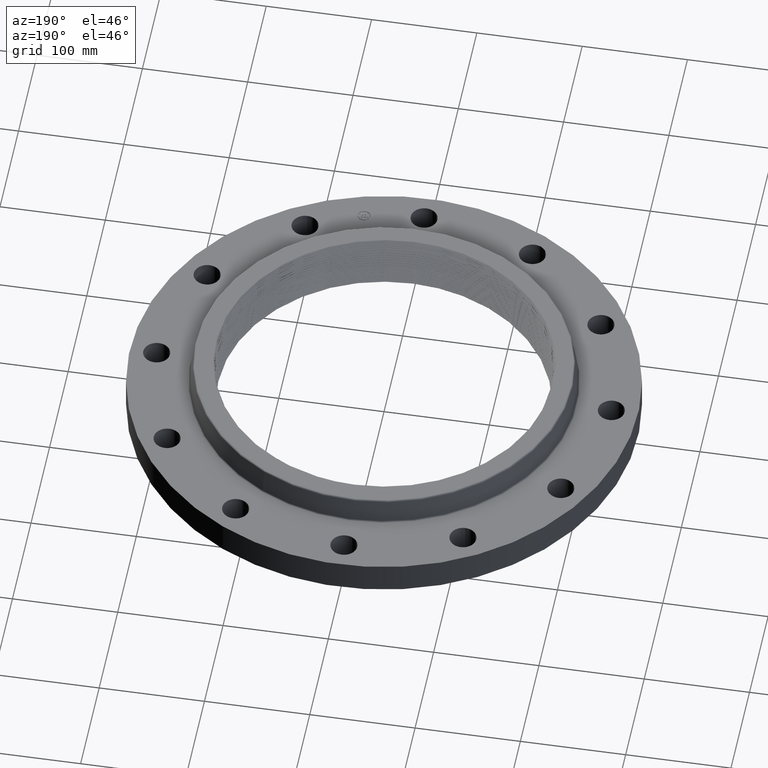
[diagram: clean part render]
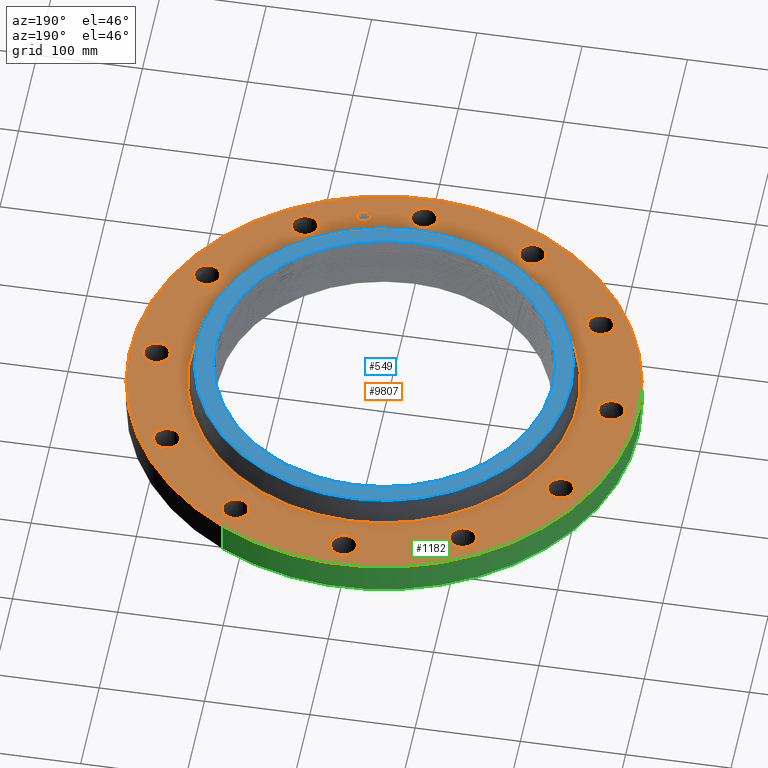
[diagram: same view with three faces highlighted in distinct colors, each labeled with its STEP entity id]
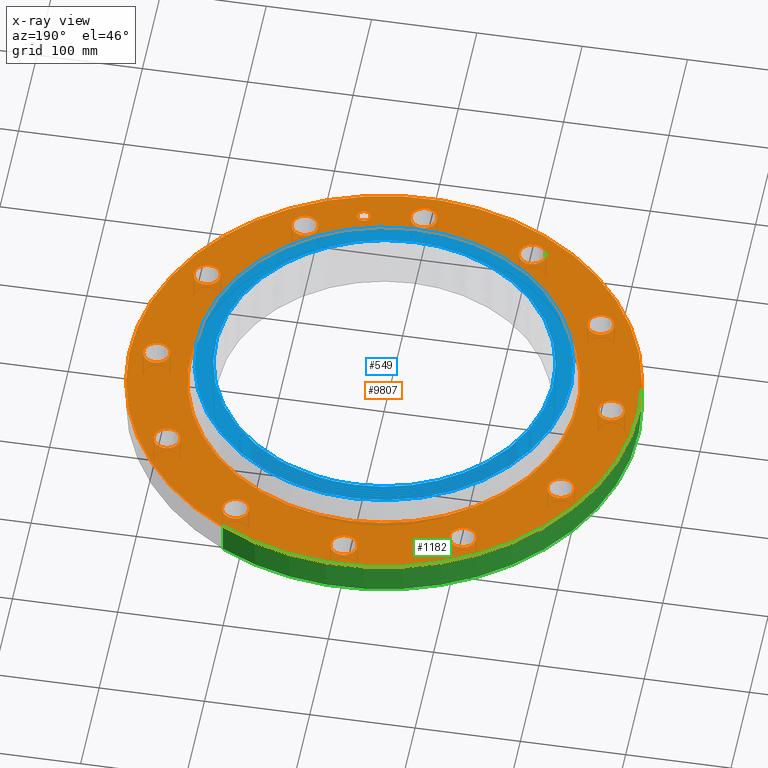
[diagram: x-ray of the same camera — body ghosted, the three highlighted faces saturated]
A machine part, auxiliary view with three faces highlighted in distinct colors.
The next image is the same camera in x-ray (body ghosted, the three faces saturated) — at least one of them is partly hidden behind the body in this view.
Their STEP definitions:

[orange] entity #9807 — the highlighted planar face has unit normal (0, 0, -1).
#571=AXIS2_PLACEMENT_3D('Circle Axis2P3D',#569,#570,$) ;
#583=AXIS2_PLACEMENT_3D('Circle Axis2P3D',#581,#582,$) ;
#614=AXIS2_PLACEMENT_3D('Circle Axis2P3D',#612,#613,$) ;
#626=AXIS2_PLACEMENT_3D('Circle Axis2P3D',#624,#625,$) ;
#657=AXIS2_PLACEMENT_3D('Circle Axis2P3D',#655,#656,$) ;
#669=AXIS2_PLACEMENT_3D('Circle Axis2P3D',#667,#668,$) ;
#700=AXIS2_PLACEMENT_3D('Circle Axis2P3D',#698,#699,$) ;
#712=AXIS2_PLACEMENT_3D('Circle Axis2P3D',#710,#711,$) ;
#743=AXIS2_PLACEMENT_3D('Circle Axis2P3D',#741,#742,$) ;
#755=AXIS2_PLACEMENT_3D('Circle Axis2P3D',#753,#754,$) ;
#786=AXIS2_PLACEMENT_3D('Circle Axis2P3D',#784,#785,$) ;
#798=AXIS2_PLACEMENT_3D('Circle Axis2P3D',#796,#797,$) ;
#829=AXIS2_PLACEMENT_3D('Circle Axis2P3D',#827,#828,$) ;
#841=AXIS2_PLACEMENT_3D('Circle Axis2P3D',#839,#840,$) ;
#872=AXIS2_PLACEMENT_3D('Circle Axis2P3D',#870,#871,$) ;
#884=AXIS2_PLACEMENT_3D('Circle Axis2P3D',#882,#883,$) ;
#915=AXIS2_PLACEMENT_3D('Circle Axis2P3D',#913,#914,$) ;
#927=AXIS2_PLACEMENT_3D('Circle Axis2P3D',#925,#926,$) ;
#958=AXIS2_PLACEMENT_3D('Circle Axis2P3D',#956,#957,$) ;
#970=AXIS2_PLACEMENT_3D('Circle Axis2P3D',#968,#969,$) ;
#1001=AXIS2_PLACEMENT_3D('Circle Axis2P3D',#999,#1000,$) ;
#1013=AXIS2_PLACEMENT_3D('Circle Axis2P3D',#1011,#1012,$) ;
#1116=AXIS2_PLACEMENT_3D('Circle Axis2P3D',#1114,#1115,$) ;
#1142=AXIS2_PLACEMENT_3D('Circle Axis2P3D',#1140,#1141,$) ;
#1166=AXIS2_PLACEMENT_3D('Circle Axis2P3D',#1164,#1165,$) ;
#1185=AXIS2_PLACEMENT_3D('Circle Axis2P3D',#1183,#1184,$) ;
#1216=AXIS2_PLACEMENT_3D('Circle Axis2P3D',#1214,#1215,$) ;
#1228=AXIS2_PLACEMENT_3D('Circle Axis2P3D',#1226,#1227,$) ;
#9731=AXIS2_PLACEMENT_3D('Plane Axis2P3D',#9728,#9729,#9730) ;
#9791=AXIS2_PLACEMENT_3D('Circle Axis2P3D',#9789,#9790,$) ;
#9800=AXIS2_PLACEMENT_3D('Circle Axis2P3D',#9798,#9799,$) ;
#559=CARTESIAN_POINT('Vertex',(7.6213639438,-4.67699298832,1.19)) ;
#566=CARTESIAN_POINT('Vertex',(7.10106792059,-3.82300701172,1.19)) ;
#569=CARTESIAN_POINT('Axis2P3D Location',(7.3612159322,-4.25000000002,1.19)) ;
#581=CARTESIAN_POINT('Axis2P3D Location',(7.3612159322,-4.25000000002,1.19)) ;
#602=CARTESIAN_POINT('Vertex',(-8.93879128098,0.239712769303,1.19)) ;
#609=CARTESIAN_POINT('Vertex',(-8.06120871909,-0.239712769303,1.19)) ;
#612=CARTESIAN_POINT('Axis2P3D Location',(-8.50000000003,-1.04094977928E-015,1.19)) ;
#624=CARTESIAN_POINT('Axis2P3D Location',(-8.50000000003,-1.04094977928E-015,1.19)) ;
#645=CARTESIAN_POINT('Vertex',(7.86107671311,4.26179829266,1.19)) ;
#652=CARTESIAN_POINT('Vertex',(6.86135515129,4.23820170737,1.19)) ;
#655=CARTESIAN_POINT('Axis2P3D Location',(7.3612159322,4.25000000002,1.19)) ;
#667=CARTESIAN_POINT('Axis2P3D Location',(7.3612159322,4.25000000002,1.19)) ;
#688=CARTESIAN_POINT('Vertex',(-7.86107671311,-4.26179829266,1.19)) ;
#695=CARTESIAN_POINT('Vertex',(-6.86135515129,-4.23820170737,1.19)) ;
#698=CARTESIAN_POINT('Axis2P3D Location',(-7.3612159322,-4.25000000002,1.19)) ;
#710=CARTESIAN_POINT('Axis2P3D Location',(-7.3612159322,-4.25000000002,1.19)) ;
#731=CARTESIAN_POINT('Vertex',(4.67699298832,7.6213639438,1.19)) ;
#738=CARTESIAN_POINT('Vertex',(3.82300701172,7.10106792059,1.19)) ;
#741=CARTESIAN_POINT('Axis2P3D Location',(4.25000000002,7.3612159322,1.19)) ;
#753=CARTESIAN_POINT('Axis2P3D Location',(4.25000000002,7.3612159322,1.19)) ;
#774=CARTESIAN_POINT('Vertex',(-4.67699298832,-7.6213639438,1.19)) ;
#781=CARTESIAN_POINT('Vertex',(-3.82300701172,-7.10106792059,1.19)) ;
#784=CARTESIAN_POINT('Axis2P3D Location',(-4.25000000002,-7.3612159322,1.19)) ;
#796=CARTESIAN_POINT('Axis2P3D Location',(-4.25000000002,-7.3612159322,1.19)) ;
#817=CARTESIAN_POINT('Vertex',(0.239712769303,8.93879128098,1.19)) ;
#824=CARTESIAN_POINT('Vertex',(-0.239712769303,8.06120871909,1.19)) ;
#827=CARTESIAN_POINT('Axis2P3D Location',(-4.42459730714E-016,8.50000000003,1.19)) ;
#839=CARTESIAN_POINT('Axis2P3D Location',(-4.42459730714E-016,8.50000000003,1.19)) ;
#860=CARTESIAN_POINT('Vertex',(-0.239712769303,-8.93879128098,1.19)) ;
#867=CARTESIAN_POINT('Vertex',(0.239712769303,-8.06120871909,1.19)) ;
#870=CARTESIAN_POINT('Axis2P3D Location',(-5.98490048565E-016,-8.50000000003,1.19)) ;
#882=CARTESIAN_POINT('Axis2P3D Location',(-5.98490048565E-016,-8.50000000003,1.19)) ;
#903=CARTESIAN_POINT('Vertex',(-4.26179829266,7.86107671311,1.19)) ;
#910=CARTESIAN_POINT('Vertex',(-4.23820170737,6.86135515129,1.19)) ;
#913=CARTESIAN_POINT('Axis2P3D Location',(-4.25000000002,7.3612159322,1.19)) ;
#925=CARTESIAN_POINT('Axis2P3D Location',(-4.25000000002,7.3612159322,1.19)) ;
#946=CARTESIAN_POINT('Vertex',(4.26179829266,-7.86107671311,1.19)) ;
#953=CARTESIAN_POINT('Vertex',(4.23820170737,-6.86135515129,1.19)) ;
#956=CARTESIAN_POINT('Axis2P3D Location',(4.25000000002,-7.3612159322,1.19)) ;
#968=CARTESIAN_POINT('Axis2P3D Location',(4.25000000002,-7.3612159322,1.19)) ;
#989=CARTESIAN_POINT('Vertex',(-7.6213639438,4.67699298832,1.19)) ;
#996=CARTESIAN_POINT('Vertex',(-7.10106792059,3.82300701172,1.19)) ;
#999=CARTESIAN_POINT('Axis2P3D Location',(-7.3612159322,4.25000000002,1.19)) ;
#1011=CARTESIAN_POINT('Axis2P3D Location',(-7.3612159322,4.25000000002,1.19)) ;
#1114=CARTESIAN_POINT('Axis2P3D Location',(0.,0.,1.19)) ;
#1118=CARTESIAN_POINT('Vertex',(-3.47120677014,-6.35400137226,1.19)) ;
#1120=CARTESIAN_POINT('Vertex',(3.47120677014,6.35400137226,1.19)) ;
#1140=CARTESIAN_POINT('Axis2P3D Location',(0.,0.,1.19)) ;
#1161=CARTESIAN_POINT('Vertex',(-4.55454261676,-8.33703433799,1.19)) ;
#1164=CARTESIAN_POINT('Axis2P3D Location',(0.,0.,1.19)) ;
#1168=CARTESIAN_POINT('Vertex',(4.55454261676,8.33703433799,1.19)) ;
#1183=CARTESIAN_POINT('Axis2P3D Location',(0.,0.,1.19)) ;
#1204=CARTESIAN_POINT('Vertex',(8.93879128098,-0.239712769303,1.19)) ;
#1211=CARTESIAN_POINT('Vertex',(8.06120871909,0.239712769303,1.19)) ;
#1214=CARTESIAN_POINT('Axis2P3D Location',(8.50000000003,0.,1.19)) ;
#1226=CARTESIAN_POINT('Axis2P3D Location',(8.50000000003,0.,1.19)) ;
#9728=CARTESIAN_POINT('Axis2P3D Location',(0.,9.50000000004,1.19)) ;
#9789=CARTESIAN_POINT('Axis2P3D Location',(2.19996188338,-8.21036952349,1.19)) ;
#9793=CARTESIAN_POINT('Vertex',(2.43902852539,-8.14631180983,1.19)) ;
#9795=CARTESIAN_POINT('Vertex',(1.96089524137,-8.27442723715,1.19)) ;
#9798=CARTESIAN_POINT('Axis2P3D Location',(2.19996188338,-8.21036952349,1.19)) ;
#570=DIRECTION('Axis2P3D Direction',(0.,-0.,-0.0393700787402)) ;
#582=DIRECTION('Axis2P3D Direction',(0.,-0.,-0.0393700787402)) ;
#613=DIRECTION('Axis2P3D Direction',(-0.,0.,-0.0393700787402)) ;
#625=DIRECTION('Axis2P3D Direction',(-0.,0.,-0.0393700787402)) ;
#656=DIRECTION('Axis2P3D Direction',(0.,0.,-0.0393700787402)) ;
#668=DIRECTION('Axis2P3D Direction',(0.,0.,-0.0393700787402)) ;
#699=DIRECTION('Axis2P3D Direction',(-0.,0.,-0.0393700787402)) ;
#711=DIRECTION('Axis2P3D Direction',(-0.,0.,-0.0393700787402)) ;
#742=DIRECTION('Axis2P3D Direction',(0.,0.,-0.0393700787402)) ;
#754=DIRECTION('Axis2P3D Direction',(0.,0.,-0.0393700787402)) ;
#785=DIRECTION('Axis2P3D Direction',(-0.,0.,-0.0393700787402)) ;
#797=DIRECTION('Axis2P3D Direction',(-0.,0.,-0.0393700787402)) ;
#828=DIRECTION('Axis2P3D Direction',(0.,0.,-0.0393700787402)) ;
#840=DIRECTION('Axis2P3D Direction',(0.,0.,-0.0393700787402)) ;
#871=DIRECTION('Axis2P3D Direction',(0.,-0.,-0.0393700787402)) ;
#883=DIRECTION('Axis2P3D Direction',(0.,-0.,-0.0393700787402)) ;
#914=DIRECTION('Axis2P3D Direction',(0.,0.,-0.0393700787402)) ;
#926=DIRECTION('Axis2P3D Direction',(0.,0.,-0.0393700787402)) ;
#957=DIRECTION('Axis2P3D Direction',(0.,-0.,-0.0393700787402)) ;
#969=DIRECTION('Axis2P3D Direction',(0.,-0.,-0.0393700787402)) ;
#1000=DIRECTION('Axis2P3D Direction',(0.,0.,-0.0393700787402)) ;
#1012=DIRECTION('Axis2P3D Direction',(0.,0.,-0.0393700787402)) ;
#1115=DIRECTION('Axis2P3D Direction',(0.,0.,-0.0393700787402)) ;
#1141=DIRECTION('Axis2P3D Direction',(0.,0.,-0.0393700787402)) ;
#1165=DIRECTION('Axis2P3D Direction',(0.,0.,-0.0393700787402)) ;
#1184=DIRECTION('Axis2P3D Direction',(0.,0.,-0.0393700787402)) ;
#1215=DIRECTION('Axis2P3D Direction',(0.,-0.,-0.0393700787402)) ;
#1227=DIRECTION('Axis2P3D Direction',(0.,-0.,-0.0393700787402)) ;
#9729=DIRECTION('Axis2P3D Direction',(0.,0.,-0.0393700787402)) ;
#9730=DIRECTION('Axis2P3D XDirection',(0.0393700787402,0.,0.)) ;
#9790=DIRECTION('Axis2P3D Direction',(0.,0.,-0.0393700787402)) ;
#9799=DIRECTION('Axis2P3D Direction',(0.,0.,-0.0393700787402)) ;
#9734=ORIENTED_EDGE('',*,*,#1187,.F.) ;
#9735=ORIENTED_EDGE('',*,*,#1170,.F.) ;
#9738=ORIENTED_EDGE('',*,*,#1230,.T.) ;
#9739=ORIENTED_EDGE('',*,*,#1218,.T.) ;
#9742=ORIENTED_EDGE('',*,*,#1122,.T.) ;
#9743=ORIENTED_EDGE('',*,*,#1144,.T.) ;
#9746=ORIENTED_EDGE('',*,*,#573,.T.) ;
#9747=ORIENTED_EDGE('',*,*,#585,.T.) ;
#9750=ORIENTED_EDGE('',*,*,#960,.T.) ;
#9751=ORIENTED_EDGE('',*,*,#972,.T.) ;
#9754=ORIENTED_EDGE('',*,*,#874,.T.) ;
#9755=ORIENTED_EDGE('',*,*,#886,.T.) ;
#9758=ORIENTED_EDGE('',*,*,#788,.T.) ;
#9759=ORIENTED_EDGE('',*,*,#800,.T.) ;
#9762=ORIENTED_EDGE('',*,*,#702,.T.) ;
#9763=ORIENTED_EDGE('',*,*,#714,.T.) ;
#9766=ORIENTED_EDGE('',*,*,#616,.T.) ;
#9767=ORIENTED_EDGE('',*,*,#628,.T.) ;
#9770=ORIENTED_EDGE('',*,*,#1003,.T.) ;
#9771=ORIENTED_EDGE('',*,*,#1015,.T.) ;
#9774=ORIENTED_EDGE('',*,*,#917,.T.) ;
#9775=ORIENTED_EDGE('',*,*,#929,.T.) ;
#9778=ORIENTED_EDGE('',*,*,#831,.T.) ;
#9779=ORIENTED_EDGE('',*,*,#843,.T.) ;
#9782=ORIENTED_EDGE('',*,*,#745,.T.) ;
#9783=ORIENTED_EDGE('',*,*,#757,.T.) ;
#9786=ORIENTED_EDGE('',*,*,#659,.T.) ;
#9787=ORIENTED_EDGE('',*,*,#671,.T.) ;
#9804=ORIENTED_EDGE('',*,*,#9797,.T.) ;
#9805=ORIENTED_EDGE('',*,*,#9802,.T.) ;
#9740=FACE_BOUND('',#9737,.T.) ;
#9744=FACE_BOUND('',#9741,.T.) ;
#9748=FACE_BOUND('',#9745,.T.) ;
#9752=FACE_BOUND('',#9749,.T.) ;
#9756=FACE_BOUND('',#9753,.T.) ;
#9760=FACE_BOUND('',#9757,.T.) ;
#9764=FACE_BOUND('',#9761,.T.) ;
#9768=FACE_BOUND('',#9765,.T.) ;
#9772=FACE_BOUND('',#9769,.T.) ;
#9776=FACE_BOUND('',#9773,.T.) ;
#9780=FACE_BOUND('',#9777,.T.) ;
#9784=FACE_BOUND('',#9781,.T.) ;
#9788=FACE_BOUND('',#9785,.T.) ;
#9806=FACE_BOUND('',#9803,.T.) ;
#9807=ADVANCED_FACE('PartBody',(#9736,#9740,#9744,#9748,#9752,#9756,#9760,#9764,#9768,#9772,#9776,#9780,#9784,#9788,#9806),#9732,.F.) ;
#572=CIRCLE('generated circle',#571,0.500000000002) ;
#584=CIRCLE('generated circle',#583,0.500000000002) ;
#615=CIRCLE('generated circle',#614,0.500000000002) ;
#627=CIRCLE('generated circle',#626,0.500000000002) ;
#658=CIRCLE('generated circle',#657,0.500000000002) ;
#670=CIRCLE('generated circle',#669,0.500000000002) ;
#701=CIRCLE('generated circle',#700,0.500000000002) ;
#713=CIRCLE('generated circle',#712,0.500000000002) ;
#744=CIRCLE('generated circle',#743,0.500000000002) ;
#756=CIRCLE('generated circle',#755,0.500000000002) ;
#787=CIRCLE('generated circle',#786,0.500000000002) ;
#799=CIRCLE('generated circle',#798,0.500000000002) ;
#830=CIRCLE('generated circle',#829,0.500000000002) ;
#842=CIRCLE('generated circle',#841,0.500000000002) ;
#873=CIRCLE('generated circle',#872,0.500000000002) ;
#885=CIRCLE('generated circle',#884,0.500000000002) ;
#916=CIRCLE('generated circle',#915,0.500000000002) ;
#928=CIRCLE('generated circle',#927,0.500000000002) ;
#959=CIRCLE('generated circle',#958,0.500000000002) ;
#971=CIRCLE('generated circle',#970,0.500000000002) ;
#1002=CIRCLE('generated circle',#1001,0.500000000002) ;
#1014=CIRCLE('generated circle',#1013,0.500000000002) ;
#1117=CIRCLE('generated circle',#1116,7.2403459779) ;
#1143=CIRCLE('generated circle',#1142,7.2403459779) ;
#1167=CIRCLE('generated circle',#1166,9.50000000004) ;
#1186=CIRCLE('generated circle',#1185,9.50000000004) ;
#1217=CIRCLE('generated circle',#1216,0.500000000002) ;
#1229=CIRCLE('generated circle',#1228,0.500000000002) ;
#9792=CIRCLE('generated circle',#9791,0.247500000001) ;
#9801=CIRCLE('generated circle',#9800,0.247500000001) ;
#573=EDGE_CURVE('',#560,#567,#572,.T.) ;
#585=EDGE_CURVE('',#567,#560,#584,.T.) ;
#616=EDGE_CURVE('',#603,#610,#615,.T.) ;
#628=EDGE_CURVE('',#610,#603,#627,.T.) ;
#659=EDGE_CURVE('',#646,#653,#658,.T.) ;
#671=EDGE_CURVE('',#653,#646,#670,.T.) ;
#702=EDGE_CURVE('',#689,#696,#701,.T.) ;
#714=EDGE_CURVE('',#696,#689,#713,.T.) ;
#745=EDGE_CURVE('',#732,#739,#744,.T.) ;
#757=EDGE_CURVE('',#739,#732,#756,.T.) ;
#788=EDGE_CURVE('',#775,#782,#787,.T.) ;
#800=EDGE_CURVE('',#782,#775,#799,.T.) ;
#831=EDGE_CURVE('',#818,#825,#830,.T.) ;
#843=EDGE_CURVE('',#825,#818,#842,.T.) ;
#874=EDGE_CURVE('',#861,#868,#873,.T.) ;
#886=EDGE_CURVE('',#868,#861,#885,.T.) ;
#917=EDGE_CURVE('',#904,#911,#916,.T.) ;
#929=EDGE_CURVE('',#911,#904,#928,.T.) ;
#960=EDGE_CURVE('',#947,#954,#959,.T.) ;
#972=EDGE_CURVE('',#954,#947,#971,.T.) ;
#1003=EDGE_CURVE('',#990,#997,#1002,.T.) ;
#1015=EDGE_CURVE('',#997,#990,#1014,.T.) ;
#1122=EDGE_CURVE('',#1119,#1121,#1117,.T.) ;
#1144=EDGE_CURVE('',#1121,#1119,#1143,.T.) ;
#1170=EDGE_CURVE('',#1162,#1169,#1167,.T.) ;
#1187=EDGE_CURVE('',#1169,#1162,#1186,.T.) ;
#1218=EDGE_CURVE('',#1205,#1212,#1217,.T.) ;
#1230=EDGE_CURVE('',#1212,#1205,#1229,.T.) ;
#9797=EDGE_CURVE('',#9794,#9796,#9792,.T.) ;
#9802=EDGE_CURVE('',#9796,#9794,#9801,.T.) ;
#9733=EDGE_LOOP('',(#9734,#9735)) ;
#9737=EDGE_LOOP('',(#9738,#9739)) ;
#9741=EDGE_LOOP('',(#9742,#9743)) ;
#9745=EDGE_LOOP('',(#9746,#9747)) ;
#9749=EDGE_LOOP('',(#9750,#9751)) ;
#9753=EDGE_LOOP('',(#9754,#9755)) ;
#9757=EDGE_LOOP('',(#9758,#9759)) ;
#9761=EDGE_LOOP('',(#9762,#9763)) ;
#9765=EDGE_LOOP('',(#9766,#9767)) ;
#9769=EDGE_LOOP('',(#9770,#9771)) ;
#9773=EDGE_LOOP('',(#9774,#9775)) ;
#9777=EDGE_LOOP('',(#9778,#9779)) ;
#9781=EDGE_LOOP('',(#9782,#9783)) ;
#9785=EDGE_LOOP('',(#9786,#9787)) ;
#9803=EDGE_LOOP('',(#9804,#9805)) ;
#9736=FACE_OUTER_BOUND('',#9733,.T.) ;
#9732=PLANE('',#9731) ;
#560=VERTEX_POINT('',#559) ;
#567=VERTEX_POINT('',#566) ;
#603=VERTEX_POINT('',#602) ;
#610=VERTEX_POINT('',#609) ;
#646=VERTEX_POINT('',#645) ;
#653=VERTEX_POINT('',#652) ;
#689=VERTEX_POINT('',#688) ;
#696=VERTEX_POINT('',#695) ;
#732=VERTEX_POINT('',#731) ;
#739=VERTEX_POINT('',#738) ;
#775=VERTEX_POINT('',#774) ;
#782=VERTEX_POINT('',#781) ;
#818=VERTEX_POINT('',#817) ;
#825=VERTEX_POINT('',#824) ;
#861=VERTEX_POINT('',#860) ;
#868=VERTEX_POINT('',#867) ;
#904=VERTEX_POINT('',#903) ;
#911=VERTEX_POINT('',#910) ;
#947=VERTEX_POINT('',#946) ;
#954=VERTEX_POINT('',#953) ;
#990=VERTEX_POINT('',#989) ;
#997=VERTEX_POINT('',#996) ;
#1119=VERTEX_POINT('',#1118) ;
#1121=VERTEX_POINT('',#1120) ;
#1162=VERTEX_POINT('',#1161) ;
#1169=VERTEX_POINT('',#1168) ;
#1205=VERTEX_POINT('',#1204) ;
#1212=VERTEX_POINT('',#1211) ;
#9794=VERTEX_POINT('',#9793) ;
#9796=VERTEX_POINT('',#9795) ;

[blue] entity #549 — the highlighted planar face has unit normal (0, 0, -1).
#405=AXIS2_PLACEMENT_3D('Plane Axis2P3D',#402,#403,#404) ;
#409=AXIS2_PLACEMENT_3D('Circle Axis2P3D',#407,#408,$) ;
#418=AXIS2_PLACEMENT_3D('Circle Axis2P3D',#416,#417,$) ;
#427=AXIS2_PLACEMENT_3D('Circle Axis2P3D',#425,#426,$) ;
#402=CARTESIAN_POINT('Axis2P3D Location',(0.,6.9756699301,2.12000000001)) ;
#407=CARTESIAN_POINT('Axis2P3D Location',(0.,0.,2.12000000001)) ;
#411=CARTESIAN_POINT('Vertex',(3.34431431336,6.12172628816,2.12000000001)) ;
#413=CARTESIAN_POINT('Vertex',(-3.34431431336,-6.12172628816,2.12000000001)) ;
#416=CARTESIAN_POINT('Axis2P3D Location',(0.,0.,2.12000000001)) ;
#425=CARTESIAN_POINT('Axis2P3D Location',(0.,0.,2.12000000001)) ;
#429=CARTESIAN_POINT('Vertex',(2.50345380621,5.735428677,2.12000000399)) ;
#431=CARTESIAN_POINT('Vertex',(2.97532522684,5.50543938885,2.12000000642)) ;
#435=CARTESIAN_POINT('Control Point',(2.97532527235,5.50543928289,2.12000000001)) ;
#436=CARTESIAN_POINT('Control Point',(3.30482148434,5.3296393776,2.12000000001)) ;
#437=CARTESIAN_POINT('Control Point',(3.62123919305,5.12923905679,2.12000000001)) ;
#438=CARTESIAN_POINT('Control Point',(3.92214940239,4.90553939111,2.12000000001)) ;
#439=CARTESIAN_POINT('Control Point',(4.5249335277,4.38328089827,2.12000000001)) ;
#440=CARTESIAN_POINT('Control Point',(5.0384902235,3.77176805895,2.12000000001)) ;
#441=CARTESIAN_POINT('Control Point',(5.28291523208,3.42521051441,2.12000000001)) ;
#442=CARTESIAN_POINT('Control Point',(5.69471289127,2.72232599671,2.12000000001)) ;
#443=CARTESIAN_POINT('Control Point',(5.98832385572,1.96225399485,2.12000000001)) ;
#444=CARTESIAN_POINT('Control Point',(6.10063235533,1.58715486054,2.12000000001)) ;
#445=CARTESIAN_POINT('Control Point',(6.23859534616,0.949831416171,2.12000000001)) ;
#446=CARTESIAN_POINT('Control Point',(6.29332875734,0.300870275223,2.12000000001)) ;
#447=CARTESIAN_POINT('Control Point',(6.30177384218,0.0403826738232,2.12000000001)) ;
#448=CARTESIAN_POINT('Control Point',(6.28857142304,-0.643442204439,2.12000000001)) ;
#449=CARTESIAN_POINT('Control Point',(6.18295343238,-1.32086248555,2.12000000001)) ;
#450=CARTESIAN_POINT('Control Point',(6.08242400434,-1.73383024062,2.12000000001)) ;
#451=CARTESIAN_POINT('Control Point',(5.81298293063,-2.53914959405,2.12000000001)) ;
#452=CARTESIAN_POINT('Control Point',(5.41301400561,-3.28864569162,2.12000000001)) ;
#453=CARTESIAN_POINT('Control Point',(5.18193502375,-3.64582921947,2.12000000001)) ;
#454=CARTESIAN_POINT('Control Point',(4.67088432378,-4.30669658518,2.12000000001)) ;
#455=CARTESIAN_POINT('Control Point',(4.05836879871,-4.87523836125,2.12000000001)) ;
#456=CARTESIAN_POINT('Control Point',(3.73537102643,-5.12961632383,2.12000000001)) ;
#457=CARTESIAN_POINT('Control Point',(3.39311283188,-5.3568081731,2.12000000001)) ;
#458=CARTESIAN_POINT('Control Point',(3.03474274474,-5.55505930424,2.12000000001)) ;
#459=CARTESIAN_POINT('Vertex',(3.03474274474,-5.55505930424,2.12000000001)) ;
#463=CARTESIAN_POINT('Control Point',(6.05038734774E-009,-6.34672585757,2.12000000001)) ;
#464=CARTESIAN_POINT('Control Point',(0.424530149729,-6.34448244492,2.12000000001)) ;
#465=CARTESIAN_POINT('Control Point',(0.84877729855,-6.30674271442,2.12000000001)) ;
#466=CARTESIAN_POINT('Control Point',(1.26878528183,-6.23353638447,2.12000000001)) ;
#467=CARTESIAN_POINT('Control Point',(1.8840390605,-6.07222688806,2.12000000001)) ;
#468=CARTESIAN_POINT('Control Point',(2.47268344144,-5.83628791654,2.12000000001)) ;
#469=CARTESIAN_POINT('Control Point',(2.6639719525,-5.75026975699,2.12000000001)) ;
#470=CARTESIAN_POINT('Control Point',(2.85146439639,-5.65644929512,2.12000000001)) ;
#471=CARTESIAN_POINT('Control Point',(3.03474274474,-5.55505930424,2.12000000001)) ;
#472=CARTESIAN_POINT('Vertex',(6.05038748761E-009,-6.34672585757,2.12000000001)) ;
#476=CARTESIAN_POINT('Control Point',(-1.86932598972,-6.07568108767,2.12000000001)) ;
#477=CARTESIAN_POINT('Control Point',(-1.50627527409,-6.1852860892,2.12000000001)) ;
#478=CARTESIAN_POINT('Control Point',(-1.13507026568,-6.26780852213,2.12000000001)) ;
#479=CARTESIAN_POINT('Control Point',(-0.758396852901,-6.32242880752,2.12000000001)) ;
#480=CARTESIAN_POINT('Control Point',(-0.379085793385,-6.34872912137,2.12000000001)) ;
#481=CARTESIAN_POINT('Control Point',(6.05038245227E-009,-6.34672585757,2.12000000001)) ;
#482=CARTESIAN_POINT('Vertex',(-1.86932598972,-6.07568108767,2.12000000001)) ;
#486=CARTESIAN_POINT('Control Point',(-1.86932598972,-6.07568108767,2.12000000001)) ;
#487=CARTESIAN_POINT('Control Point',(-2.27488576103,-5.94878148456,2.12000000001)) ;
#488=CARTESIAN_POINT('Control Point',(-2.66969653175,-5.78803409088,2.12000000001)) ;
#489=CARTESIAN_POINT('Control Point',(-3.05000021276,-5.59464357329,2.12000000001)) ;
#490=CARTESIAN_POINT('Control Point',(-3.77458598646,-5.14620748269,2.12000000001)) ;
#491=CARTESIAN_POINT('Control Point',(-4.41434731883,-4.58395764897,2.12000000001)) ;
#492=CARTESIAN_POINT('Control Point',(-4.7099137431,-4.27668321674,2.12000000001)) ;
#493=CARTESIAN_POINT('Control Point',(-5.2466652767,-3.61582556535,2.12000000001)) ;
#494=CARTESIAN_POINT('Control Point',(-5.66604583266,-2.87508387039,2.12000000001)) ;
#495=CARTESIAN_POINT('Control Point',(-5.84413484609,-2.48807347083,2.12000000001)) ;
#496=CARTESIAN_POINT('Control Point',(-6.05579153882,-1.90339464529,2.12000000001)) ;
#497=CARTESIAN_POINT('Control Point',(-6.19420391653,-1.29898620728,2.12000000001)) ;
#498=CARTESIAN_POINT('Control Point',(-6.23049875741,-1.10658020344,2.12000000001)) ;
#499=CARTESIAN_POINT('Control Point',(-6.29773658046,-0.654858067053,2.12000000001)) ;
#500=CARTESIAN_POINT('Control Point',(-6.32403623929,-0.198741115012,2.12000000001)) ;
#501=CARTESIAN_POINT('Control Point',(-6.32559682226,0.0623965340416,2.12000000001)) ;
#502=CARTESIAN_POINT('Control Point',(-6.29433899013,0.746823652536,2.12000000001)) ;
#503=CARTESIAN_POINT('Control Point',(-6.17091218526,1.42195463724,2.12000000001)) ;
#504=CARTESIAN_POINT('Control Point',(-6.05957509159,1.83241683312,2.12000000001)) ;
#505=CARTESIAN_POINT('Control Point',(-5.76919329721,2.63060913283,2.12000000001)) ;
#506=CARTESIAN_POINT('Control Point',(-5.35007909841,3.36895517275,2.12000000001)) ;
#507=CARTESIAN_POINT('Control Point',(-5.10998926276,3.71960441953,2.12000000001)) ;
#508=CARTESIAN_POINT('Control Point',(-4.59622377389,4.34910362969,2.12000000001)) ;
#509=CARTESIAN_POINT('Control Point',(-3.98898839849,4.88802422324,2.12000000001)) ;
#510=CARTESIAN_POINT('Control Point',(-3.67968736879,5.12261390351,2.12000000001)) ;
#511=CARTESIAN_POINT('Control Point',(-3.35362010675,5.33247932043,2.12000000001)) ;
#512=CARTESIAN_POINT('Control Point',(-3.01349428165,5.5161644489,2.12000000001)) ;
#513=CARTESIAN_POINT('Vertex',(-3.01349428165,5.5161644489,2.12000000001)) ;
#517=CARTESIAN_POINT('Control Point',(-3.01349428165,5.5161644489,2.12000000001)) ;
#518=CARTESIAN_POINT('Control Point',(-2.6417564073,5.71692168098,2.12000000001)) ;
#519=CARTESIAN_POINT('Control Point',(-2.25322486172,5.88640633262,2.12000000001)) ;
#520=CARTESIAN_POINT('Control Point',(-1.85140182529,6.02273475823,2.12000000001)) ;
#521=CARTESIAN_POINT('Control Point',(-1.2398692724,6.17422501536,2.12000000001)) ;
#522=CARTESIAN_POINT('Control Point',(-0.61609373413,6.24819779393,2.12000000001)) ;
#523=CARTESIAN_POINT('Control Point',(-0.410975072377,6.26403693137,2.12000000001)) ;
#524=CARTESIAN_POINT('Control Point',(-0.205457041978,6.27145770626,2.12000000001)) ;
#525=CARTESIAN_POINT('Control Point',(1.05461535987E-007,6.27046342784,2.12000000001)) ;
#526=CARTESIAN_POINT('Vertex',(1.05461535987E-007,6.27046342784,2.12000000001)) ;
#530=CARTESIAN_POINT('Control Point',(2.50345396533,5.73542861225,2.12000000001)) ;
#531=CARTESIAN_POINT('Control Point',(2.16652363989,5.88444583592,2.12000000001)) ;
#532=CARTESIAN_POINT('Control Point',(1.81852404462,6.00871141618,2.12000000001)) ;
#533=CARTESIAN_POINT('Control Point',(1.461870061,6.10713445115,2.12000000001)) ;
#534=CARTESIAN_POINT('Control Point',(0.954647034927,6.20759474057,2.12000000001)) ;
#535=CARTESIAN_POINT('Control Point',(0.44076128264,6.25540605987,2.12000000001)) ;
#536=CARTESIAN_POINT('Control Point',(0.293986156626,6.26473232574,2.12000000001)) ;
#537=CARTESIAN_POINT('Control Point',(0.147008688911,6.26975200238,2.12000000001)) ;
#538=CARTESIAN_POINT('Control Point',(1.05461528924E-007,6.27046342784,2.12000000001)) ;
#403=DIRECTION('Axis2P3D Direction',(0.,0.,-0.0393700787402)) ;
#404=DIRECTION('Axis2P3D XDirection',(0.0393700787402,0.,0.)) ;
#408=DIRECTION('Axis2P3D Direction',(0.,0.,-0.0393700787402)) ;
#417=DIRECTION('Axis2P3D Direction',(0.,0.,-0.0393700787402)) ;
#426=DIRECTION('Axis2P3D Direction',(0.,0.,-0.0393700787402)) ;
#422=ORIENTED_EDGE('',*,*,#415,.F.) ;
#423=ORIENTED_EDGE('',*,*,#420,.F.) ;
#541=ORIENTED_EDGE('',*,*,#433,.T.) ;
#542=ORIENTED_EDGE('',*,*,#461,.T.) ;
#543=ORIENTED_EDGE('',*,*,#474,.F.) ;
#544=ORIENTED_EDGE('',*,*,#484,.F.) ;
#545=ORIENTED_EDGE('',*,*,#515,.T.) ;
#546=ORIENTED_EDGE('',*,*,#528,.T.) ;
#547=ORIENTED_EDGE('',*,*,#539,.F.) ;
#548=FACE_BOUND('',#540,.T.) ;
#549=ADVANCED_FACE('PartBody',(#424,#548),#406,.F.) ;
#434=B_SPLINE_CURVE_WITH_KNOTS('',5,(#435,#436,#437,#438,#439,#440,#441,#442,#443,#444,#445,#446,#447,#448,#449,#450,#451,#452,#453,#454,#455,#456,#457,#458),.UNSPECIFIED.,.F.,.U.,(6,3,3,3,3,3,3,6),(8.68614473619,76.0861049833,152.164167382,222.352190841,269.133339405,345.167238911,421.209172546,494.63653297),.UNSPECIFIED.) ;
#462=B_SPLINE_CURVE_WITH_KNOTS('',5,(#463,#464,#465,#466,#467,#468,#469,#470,#471),.UNSPECIFIED.,.F.,.U.,(6,3,6),(0.,76.011867566,113.564235423),.UNSPECIFIED.) ;
#475=B_SPLINE_CURVE_WITH_KNOTS('',5,(#476,#477,#478,#479,#480,#481),.UNSPECIFIED.,.F.,.U.,(6,6),(0.,67.8750849897),.UNSPECIFIED.) ;
#485=B_SPLINE_CURVE_WITH_KNOTS('',5,(#486,#487,#488,#489,#490,#491,#492,#493,#494,#495,#496,#497,#498,#499,#500,#501,#502,#503,#504,#505,#506,#507,#508,#509,#510,#511,#512),.UNSPECIFIED.,.F.,.U.,(6,3,3,3,3,3,3,3,6),(0.,76.0570438953,152.13444205,228.178752407,263.26306508,310.037110739,386.060003185,462.089922795,531.627555671),.UNSPECIFIED.) ;
#516=B_SPLINE_CURVE_WITH_KNOTS('',5,(#517,#518,#519,#520,#521,#522,#523,#524,#525),.UNSPECIFIED.,.F.,.U.,(6,3,6),(0.,76.0006148447,113.004706695),.UNSPECIFIED.) ;
#529=B_SPLINE_CURVE_WITH_KNOTS('',5,(#530,#531,#532,#533,#534,#535,#536,#537,#538),.UNSPECIFIED.,.F.,.U.,(6,3,6),(9.5696019629,76.0295278922,102.506675037),.UNSPECIFIED.) ;
#410=CIRCLE('generated circle',#409,6.9756699301) ;
#419=CIRCLE('generated circle',#418,6.9756699301) ;
#428=CIRCLE('generated circle',#427,6.25798873979) ;
#415=EDGE_CURVE('',#412,#414,#410,.T.) ;
#420=EDGE_CURVE('',#414,#412,#419,.T.) ;
#433=EDGE_CURVE('',#430,#432,#428,.T.) ;
#461=EDGE_CURVE('',#432,#460,#434,.T.) ;
#474=EDGE_CURVE('',#473,#460,#462,.T.) ;
#484=EDGE_CURVE('',#483,#473,#475,.T.) ;
#515=EDGE_CURVE('',#483,#514,#485,.T.) ;
#528=EDGE_CURVE('',#514,#527,#516,.T.) ;
#539=EDGE_CURVE('',#430,#527,#529,.T.) ;
#421=EDGE_LOOP('',(#422,#423)) ;
#540=EDGE_LOOP('',(#541,#542,#543,#544,#545,#546,#547)) ;
#424=FACE_OUTER_BOUND('',#421,.T.) ;
#406=PLANE('',#405) ;
#412=VERTEX_POINT('',#411) ;
#414=VERTEX_POINT('',#413) ;
#430=VERTEX_POINT('',#429) ;
#432=VERTEX_POINT('',#431) ;
#460=VERTEX_POINT('',#459) ;
#473=VERTEX_POINT('',#472) ;
#483=VERTEX_POINT('',#482) ;
#514=VERTEX_POINT('',#513) ;
#527=VERTEX_POINT('',#526) ;

[green] entity #1182 — the highlighted cylindrical surface (partial cylindrical patch) has radius 241.3 mm, axis along (0, 0, -1).
#51=AXIS2_PLACEMENT_3D('Circle Axis2P3D',#49,#50,$) ;
#1155=AXIS2_PLACEMENT_3D('Cylinder Axis2P3D',#1152,#1153,#1154) ;
#1166=AXIS2_PLACEMENT_3D('Circle Axis2P3D',#1164,#1165,$) ;
#44=CARTESIAN_POINT('Vertex',(4.55454261676,8.33703433799,1.1189649382E-015)) ;
#46=CARTESIAN_POINT('Vertex',(-4.55454261676,-8.33703433799,1.1189649382E-015)) ;
#49=CARTESIAN_POINT('Axis2P3D Location',(0.,0.,0.)) ;
#1152=CARTESIAN_POINT('Axis2P3D Location',(0.,0.,1.06)) ;
#1157=CARTESIAN_POINT('Line Origine',(-4.55454261676,-8.33703433799,0.595000000002)) ;
#1161=CARTESIAN_POINT('Vertex',(-4.55454261676,-8.33703433799,1.19)) ;
#1164=CARTESIAN_POINT('Axis2P3D Location',(0.,0.,1.19)) ;
#1168=CARTESIAN_POINT('Vertex',(4.55454261676,8.33703433799,1.19)) ;
#1171=CARTESIAN_POINT('Line Origine',(4.55454261676,8.33703433799,0.595000000002)) ;
#50=DIRECTION('Axis2P3D Direction',(0.,0.,-0.0393700787402)) ;
#1153=DIRECTION('Axis2P3D Direction',(0.,0.,-0.0393700787402)) ;
#1154=DIRECTION('Axis2P3D XDirection',(0.0188750212049,0.0345504945626,0.)) ;
#1158=DIRECTION('Vector Direction',(0.,0.,-0.0393700787402)) ;
#1165=DIRECTION('Axis2P3D Direction',(0.,0.,-0.0393700787402)) ;
#1172=DIRECTION('Vector Direction',(0.,0.,-0.0393700787402)) ;
#1159=VECTOR('Line Direction',#1158,0.0393700787402) ;
#1173=VECTOR('Line Direction',#1172,0.0393700787402) ;
#1177=ORIENTED_EDGE('',*,*,#53,.F.) ;
#1178=ORIENTED_EDGE('',*,*,#1163,.T.) ;
#1179=ORIENTED_EDGE('',*,*,#1170,.T.) ;
#1180=ORIENTED_EDGE('',*,*,#1175,.F.) ;
#1182=ADVANCED_FACE('PartBody',(#1181),#1156,.T.) ;
#52=CIRCLE('generated circle',#51,9.50000000004) ;
#1167=CIRCLE('generated circle',#1166,9.50000000004) ;
#1156=CYLINDRICAL_SURFACE('generated cylinder',#1155,9.50000000004) ;
#53=EDGE_CURVE('',#47,#45,#52,.T.) ;
#1163=EDGE_CURVE('',#47,#1162,#1160,.F.) ;
#1170=EDGE_CURVE('',#1162,#1169,#1167,.T.) ;
#1175=EDGE_CURVE('',#45,#1169,#1174,.F.) ;
#1176=EDGE_LOOP('',(#1177,#1178,#1179,#1180)) ;
#1181=FACE_OUTER_BOUND('',#1176,.T.) ;
#1160=LINE('Line',#1157,#1159) ;
#1174=LINE('Line',#1171,#1173) ;
#45=VERTEX_POINT('',#44) ;
#47=VERTEX_POINT('',#46) ;
#1162=VERTEX_POINT('',#1161) ;
#1169=VERTEX_POINT('',#1168) ;